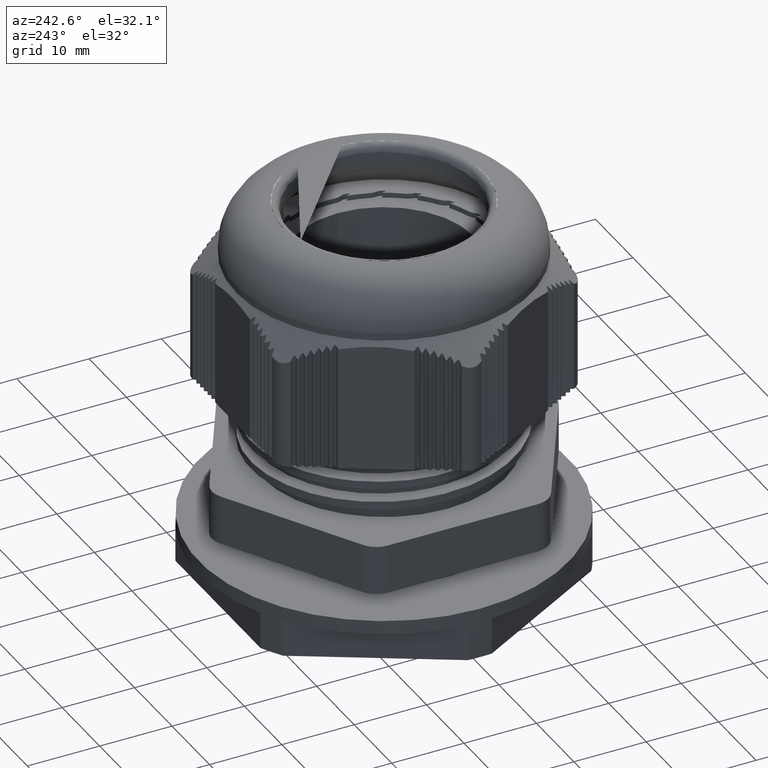
[diagram: clean part render]
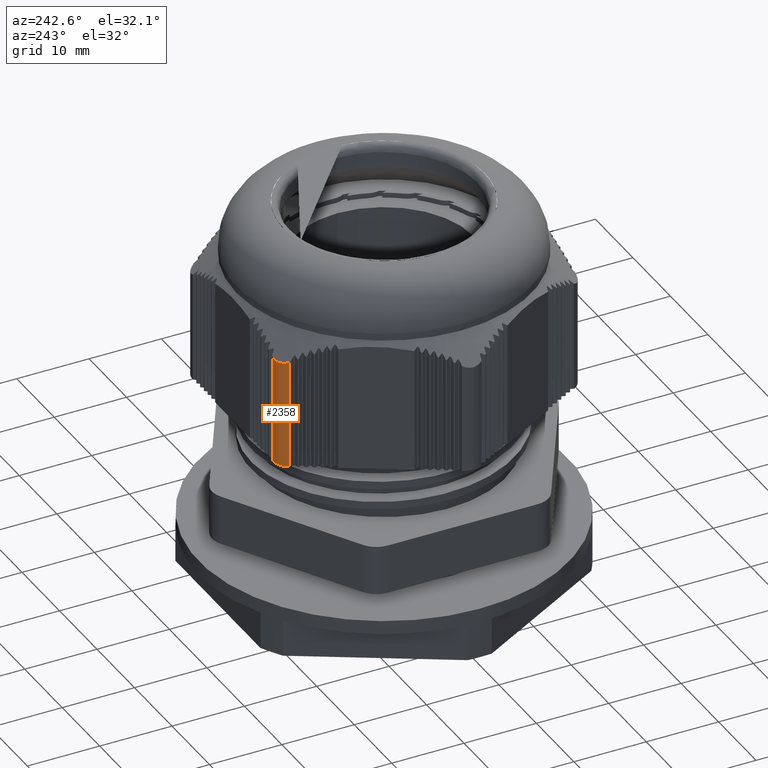
[diagram: same view with one face highlighted and labeled with its STEP entity id]
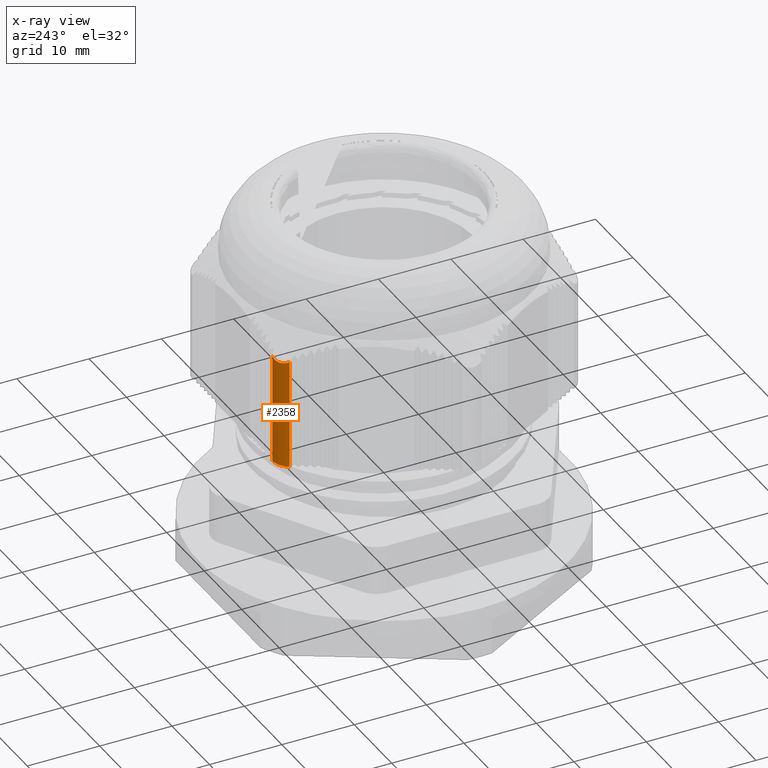
[diagram: x-ray of the same camera — body ghosted, the highlighted face saturated]
A machine part, auxiliary view. The second image highlights one B-rep face of the part: STEP entity #2358.
The next image is the same camera in x-ray: the body ghosted, the highlighted face saturated — about 0% of this face is hidden behind the body in this view.
In plain terms, the highlighted cylindrical surface (edge-blend (fillet) strip) has radius 2.5 mm, axis along (0, 0, -1).
Its self-contained STEP definition (entity closure, byte-faithful):
#2358 = ADVANCED_FACE ( 'NONE', ( #14933 ), #14964, .T. ) ;
#2507 = EDGE_CURVE ( 'NONE', #3387, #3394, #15624, .T. ) ;
#2551 = EDGE_CURVE ( 'NONE', #3394, #3440, #5612, .T. ) ;
#2570 = EDGE_CURVE ( 'NONE', #3387, #3409, #16013, .T. ) ;
#2598 = EDGE_CURVE ( 'NONE', #3440, #3409, #16393, .T. ) ;
#3011 = EDGE_LOOP ( 'NONE', ( #22096, #22091, #24130, #22102 ) ) ;
#3387 = VERTEX_POINT ( 'NONE', #17716 ) ;
#3394 = VERTEX_POINT ( 'NONE', #17724 ) ;
#3409 = VERTEX_POINT ( 'NONE', #17685 ) ;
#3440 = VERTEX_POINT ( 'NONE', #17785 ) ;
#5612 = B_SPLINE_CURVE_WITH_KNOTS ( 'NONE', 3,
 ( #15686, #15733, #15740, #15745, #15762, #15737, #15739, #15760, #15777, #15765 ),
 .UNSPECIFIED., .F., .F.,
 ( 4, 2, 2, 2, 4 ),
 ( 5.928593550334433900E-017, 0.0006741903992750361800, 0.001348380798550012900, 0.002022571197824990200, 0.002696761597099966900 ),
 .UNSPECIFIED. ) ;
#13428 = VECTOR ( 'NONE', #15628, 1000.000000000000000 ) ;
#13660 = AXIS2_PLACEMENT_3D ( 'NONE', #14954, #14959, #14955 ) ;
#14933 = FACE_OUTER_BOUND ( 'NONE', #3011, .T. ) ;
#14954 = CARTESIAN_POINT ( 'NONE',  ( -681.9340285549531000, 349.4494562443068200, 45.42358769562343200 ) ) ;
#14955 = DIRECTION ( 'NONE',  ( -1.000000000000000000, 0.0000000000000000000, 0.0000000000000000000 ) ) ;
#14959 = DIRECTION ( 'NONE',  ( 0.0000000000000000000, 0.0000000000000000000, -1.000000000000000000 ) ) ;
#14964 = CYLINDRICAL_SURFACE ( 'NONE', #13660, 2.499999999999946700 ) ;
#15605 = CARTESIAN_POINT ( 'NONE',  ( -684.0990920644142100, 350.6994562443068200, 45.42358769562343200 ) ) ;
#15624 = LINE ( 'NONE', #15605, #13428 ) ;
#15628 = DIRECTION ( 'NONE',  ( -0.0000000000000000000, -0.0000000000000000000, 1.000000000000000000 ) ) ;
#15686 = CARTESIAN_POINT ( 'NONE',  ( -684.0990920644140900, 350.6994562443067600, 42.87103464281636900 ) ) ;
#15733 = CARTESIAN_POINT ( 'NONE',  ( -683.9955424603488200, 350.8788094196518200, 42.77717062507379400 ) ) ;
#15737 = CARTESIAN_POINT ( 'NONE',  ( -682.9882751782346300, 351.7276512759979100, 42.56927497976246100 ) ) ;
#15739 = CARTESIAN_POINT ( 'NONE',  ( -682.7804537027002400, 351.8122190394321900, 42.59668389804653500 ) ) ;
#15740 = CARTESIAN_POINT ( 'NONE',  ( -683.8685515648467100, 351.0483904588794500, 42.70215007560724300 ) ) ;
#15745 = CARTESIAN_POINT ( 'NONE',  ( -683.5576088170178100, 351.3633415676665100, 42.59682886117532500 ) ) ;
#15760 = CARTESIAN_POINT ( 'NONE',  ( -682.3517533962592600, 351.9242470463188400, 42.70204655660933900 ) ) ;
#15762 = CARTESIAN_POINT ( 'NONE',  ( -683.3816557114779500, 351.5003058635657600, 42.56945096436870600 ) ) ;
#15765 = CARTESIAN_POINT ( 'NONE',  ( -681.9340285549531000, 351.9494562443068700, 42.87103464281627700 ) ) ;
#15777 = CARTESIAN_POINT ( 'NONE',  ( -682.1411705258343500, 351.9494562443068200, 42.77715124362090600 ) ) ;
#15838 = DIRECTION ( 'NONE',  ( 0.0000000000000000000, 0.0000000000000000000, -1.000000000000000000 ) ) ;
#15855 = DIRECTION ( 'NONE',  ( -1.000000000000000000, 0.0000000000000000000, 0.0000000000000000000 ) ) ;
#15875 = CARTESIAN_POINT ( 'NONE',  ( -681.9340285549531000, 349.4494562443068200, 27.72358769562344700 ) ) ;
#16013 = CIRCLE ( 'NONE', #16032, 2.499999999999946700 ) ;
#16032 = AXIS2_PLACEMENT_3D ( 'NONE', #15875, #15838, #15855 ) ;
#16055 = VECTOR ( 'NONE', #16405, 1000.000000000000000 ) ;
#16343 = CARTESIAN_POINT ( 'NONE',  ( -681.9340285549531000, 351.9494562443068200, 45.42358769562343200 ) ) ;
#16393 = LINE ( 'NONE', #16343, #16055 ) ;
#16405 = DIRECTION ( 'NONE',  ( 0.0000000000000000000, 0.0000000000000000000, -1.000000000000000000 ) ) ;
#17685 = CARTESIAN_POINT ( 'NONE',  ( -681.9340285549531000, 351.9494562443068700, 27.72358769562344700 ) ) ;
#17716 = CARTESIAN_POINT ( 'NONE',  ( -684.0990920644140900, 350.6994562443067600, 27.72358769562344700 ) ) ;
#17724 = CARTESIAN_POINT ( 'NONE',  ( -684.0990920644140900, 350.6994562443067600, 42.87103464281636900 ) ) ;
#17785 = CARTESIAN_POINT ( 'NONE',  ( -681.9340285549531000, 351.9494562443068700, 42.87103464281627700 ) ) ;
#22091 = ORIENTED_EDGE ( 'NONE', *, *, #2598, .T. ) ;
#22096 = ORIENTED_EDGE ( 'NONE', *, *, #2551, .T. ) ;
#22102 = ORIENTED_EDGE ( 'NONE', *, *, #2507, .T. ) ;
#24130 = ORIENTED_EDGE ( 'NONE', *, *, #2570, .F. ) ;